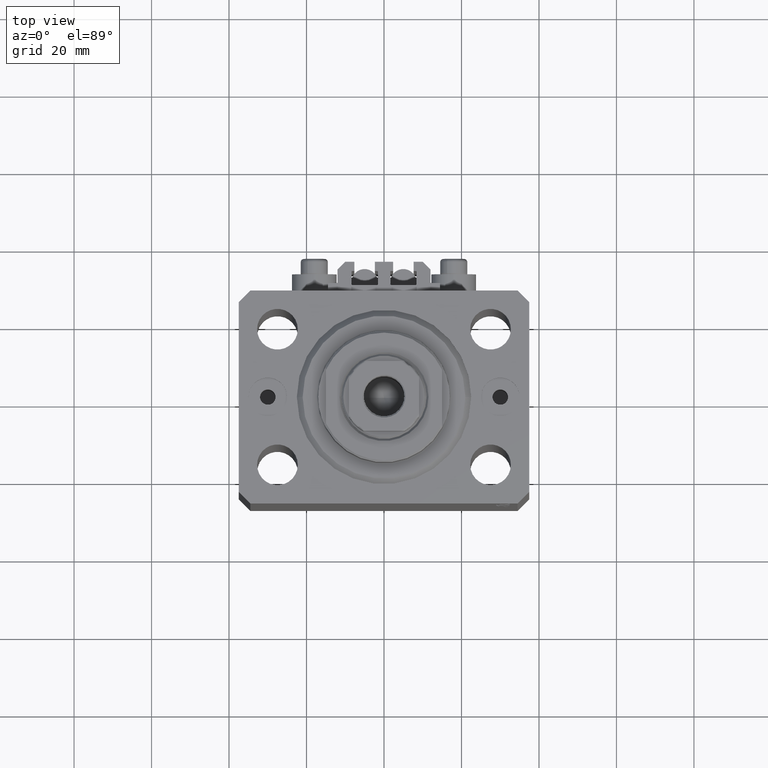
[diagram: clean part render]
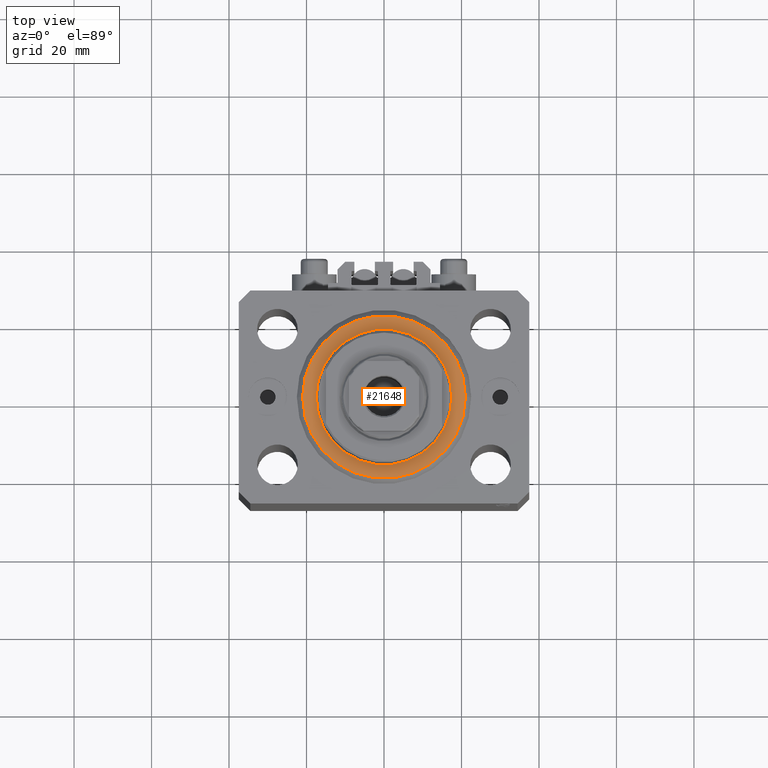
[diagram: same view with one face highlighted and labeled with its STEP entity id]
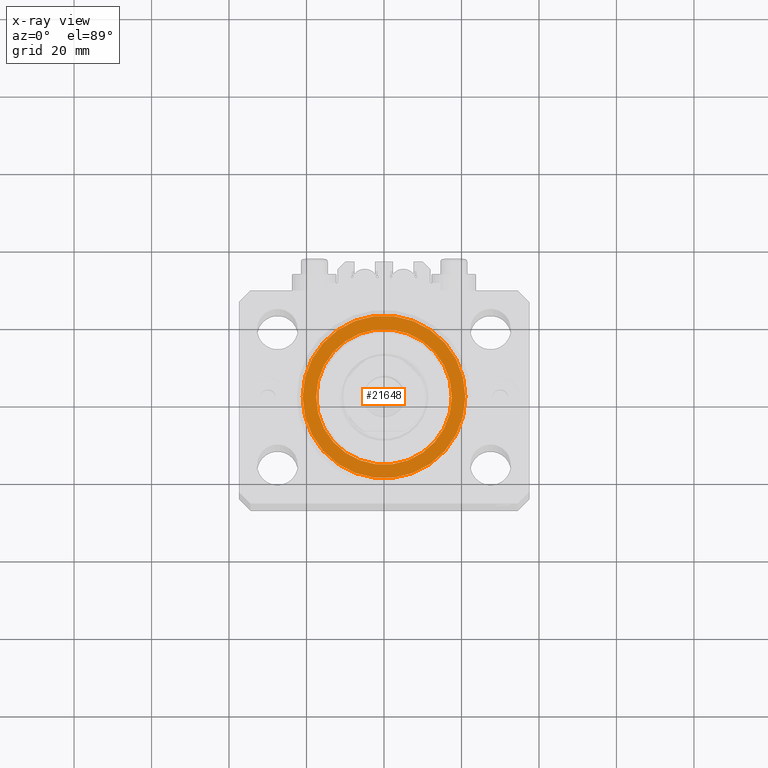
[diagram: x-ray of the same camera — body ghosted, the highlighted face saturated]
A machine part, top view. The second image highlights one B-rep face of the part: STEP entity #21648.
The next image is the same camera in x-ray: the body ghosted, the highlighted face saturated — about 0% of this face is hidden behind the body in this view.
In plain terms, the highlighted planar face has unit normal (0, 0, -1).
Its self-contained STEP definition (entity closure, byte-faithful):
#375 = AXIS2_PLACEMENT_3D ( 'NONE', #9641, #9407, #31513 ) ;
#1393 = AXIS2_PLACEMENT_3D ( 'NONE', #13504, #24679, #32190 ) ;
#1739 = VERTEX_POINT ( 'NONE', #17957 ) ;
#7947 = CARTESIAN_POINT ( 'NONE',  ( 0.000000000000000000, 0.000000000000000000, 0.000000000000000000 ) ) ;
#9407 = DIRECTION ( 'NONE',  ( -0.000000000000000000, -0.000000000000000000, -1.000000000000000000 ) ) ;
#9641 = CARTESIAN_POINT ( 'NONE',  ( 0.000000000000000000, 0.000000000000000000, 0.000000000000000000 ) ) ;
#10553 = EDGE_CURVE ( 'NONE', #44205, #42260, #14541, .T. ) ;
#10570 = DIRECTION ( 'NONE',  ( 1.000000000000000000, 0.000000000000000000, -0.000000000000000000 ) ) ;
#11260 = CIRCLE ( 'NONE', #375, 20.99999999999998934 ) ;
#11594 = DIRECTION ( 'NONE',  ( 1.000000000000000000, 0.000000000000000000, 0.000000000000000000 ) ) ;
#13504 = CARTESIAN_POINT ( 'NONE',  ( 0.000000000000000000, 0.000000000000000000, 0.000000000000000000 ) ) ;
#14528 = DIRECTION ( 'NONE',  ( 0.000000000000000000, 0.000000000000000000, 1.000000000000000000 ) ) ;
#14541 = CIRCLE ( 'NONE', #32373, 20.99999999999998934 ) ;
#16211 = VERTEX_POINT ( 'NONE', #35748 ) ;
#17957 = CARTESIAN_POINT ( 'NONE',  ( -17.50000000000000000, 2.143131898507868643E-15, -2.168404344971008868E-16 ) ) ;
#18225 = EDGE_LOOP ( 'NONE', ( #18418, #30982 ) ) ;
#18356 = CARTESIAN_POINT ( 'NONE',  ( 0.000000000000000000, 0.000000000000000000, 0.000000000000000000 ) ) ;
#18418 = ORIENTED_EDGE ( 'NONE', *, *, #10553, .T. ) ;
#20312 = AXIS2_PLACEMENT_3D ( 'NONE', #18356, #22009, #10570 ) ;
#21648 = ADVANCED_FACE ( 'NONE', ( #32182, #36063 ), #29526, .F. ) ;
#22009 = DIRECTION ( 'NONE',  ( 0.000000000000000000, 0.000000000000000000, 1.000000000000000000 ) ) ;
#22432 = EDGE_CURVE ( 'NONE', #16211, #1739, #31192, .T. ) ;
#24679 = DIRECTION ( 'NONE',  ( 0.000000000000000000, 0.000000000000000000, 1.000000000000000000 ) ) ;
#25693 = CARTESIAN_POINT ( 'NONE',  ( 0.000000000000000000, 0.000000000000000000, 0.000000000000000000 ) ) ;
#25835 = ORIENTED_EDGE ( 'NONE', *, *, #43429, .T. ) ;
#29526 = PLANE ( 'NONE',  #20312 ) ;
#30003 = CARTESIAN_POINT ( 'NONE',  ( -20.99999999999998934, 2.663606788145492628E-15, 0.000000000000000000 ) ) ;
#30982 = ORIENTED_EDGE ( 'NONE', *, *, #31227, .T. ) ;
#31192 = CIRCLE ( 'NONE', #35065, 17.50000000000000000 ) ;
#31227 = EDGE_CURVE ( 'NONE', #42260, #44205, #11260, .T. ) ;
#31513 = DIRECTION ( 'NONE',  ( 1.000000000000000000, 0.000000000000000000, 0.000000000000000000 ) ) ;
#32182 = FACE_BOUND ( 'NONE', #46823, .T. ) ;
#32190 = DIRECTION ( 'NONE',  ( 1.000000000000000000, 0.000000000000000000, 0.000000000000000000 ) ) ;
#32373 = AXIS2_PLACEMENT_3D ( 'NONE', #7947, #41916, #41670 ) ;
#33196 = CIRCLE ( 'NONE', #1393, 17.50000000000000000 ) ;
#34934 = CARTESIAN_POINT ( 'NONE',  ( 20.99999999999998934, 0.000000000000000000, 0.000000000000000000 ) ) ;
#35065 = AXIS2_PLACEMENT_3D ( 'NONE', #25693, #14528, #11594 ) ;
#35748 = CARTESIAN_POINT ( 'NONE',  ( 17.50000000000000000, 0.000000000000000000, -2.168404344971008868E-16 ) ) ;
#36041 = ORIENTED_EDGE ( 'NONE', *, *, #22432, .T. ) ;
#36063 = FACE_OUTER_BOUND ( 'NONE', #18225, .T. ) ;
#41670 = DIRECTION ( 'NONE',  ( 1.000000000000000000, 0.000000000000000000, 0.000000000000000000 ) ) ;
#41916 = DIRECTION ( 'NONE',  ( -0.000000000000000000, -0.000000000000000000, -1.000000000000000000 ) ) ;
#42260 = VERTEX_POINT ( 'NONE', #30003 ) ;
#43429 = EDGE_CURVE ( 'NONE', #1739, #16211, #33196, .T. ) ;
#44205 = VERTEX_POINT ( 'NONE', #34934 ) ;
#46823 = EDGE_LOOP ( 'NONE', ( #36041, #25835 ) ) ;